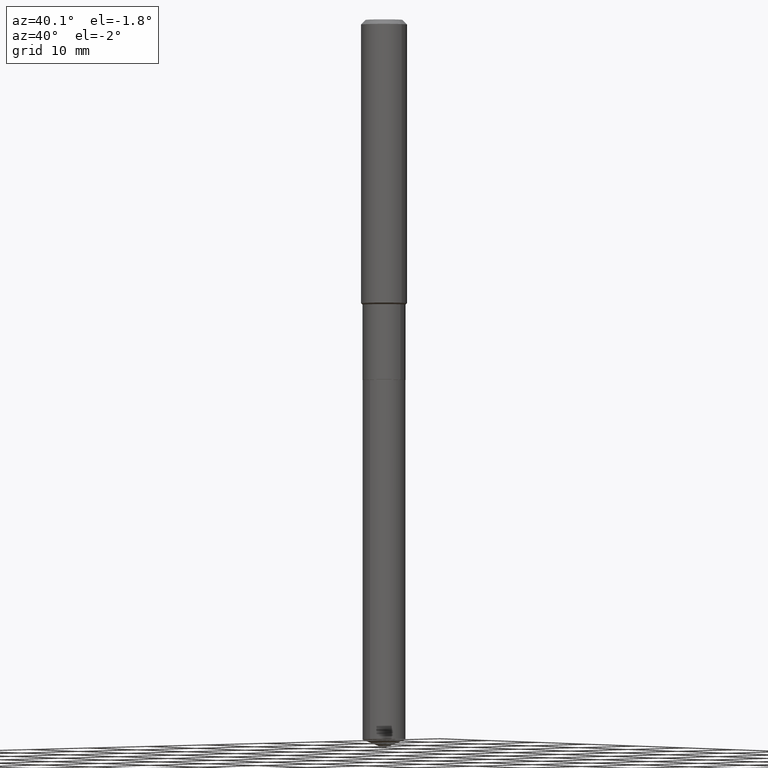
[diagram: clean part render]
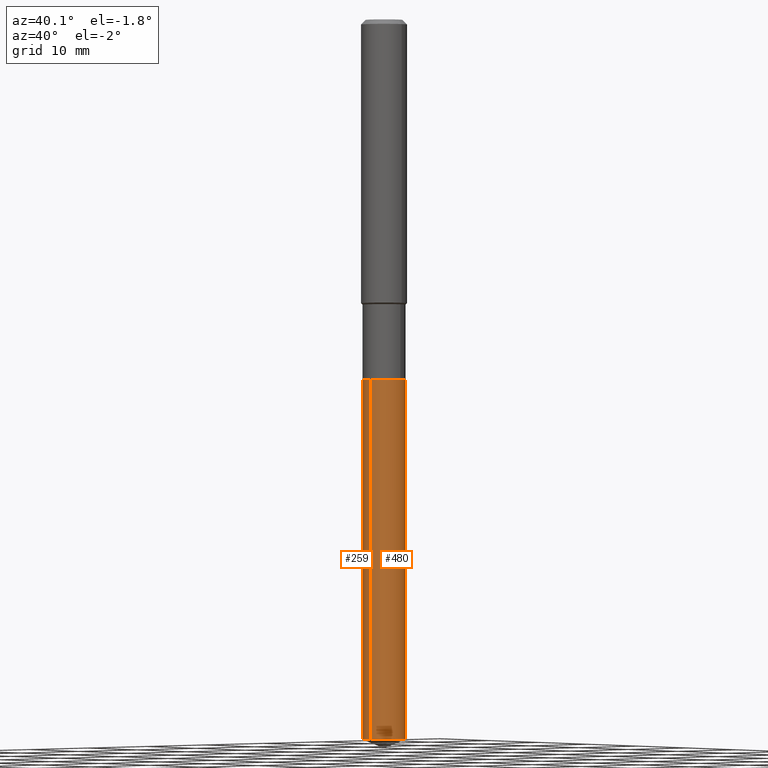
[diagram: same view with one multi-face feature highlighted, each face labeled with its STEP entity id]
A machine part, auxiliary view. The highlighted faces form ONE feature: a constant-radius fillet chain: 2 tangent blend faces with common blend radius 2.8003 mm. The faces share edges in the B-rep.
Their STEP definitions:
[1] entity #480 (Cylinder):
#28 = DIRECTION ( 'NONE',  ( -6.982962677686266711E-15, -1.000000000000000000, 2.477866660919966807E-15 ) ) ;
#31 = VERTEX_POINT ( 'NONE', #120 ) ;
#33 = ORIENTED_EDGE ( 'NONE', *, *, #79, .T. ) ;
#35 = CIRCLE ( 'NONE', #487, 0.1102500000000000008 ) ;
#50 = CARTESIAN_POINT ( 'NONE',  ( 9.040360732535120479E-29, -1.290717722925754200E-14, -3.696771370063453688 ) ) ;
#79 = EDGE_CURVE ( 'NONE', #31, #292, #299, .T. ) ;
#83 = DIRECTION ( 'NONE',  ( -6.982962677686266711E-15, -1.000000000000000000, 2.477866660919966807E-15 ) ) ;
#94 = VECTOR ( 'NONE', #222, 39.37007874015748143 ) ;
#117 = DIRECTION ( 'NONE',  ( -2.445480539169630025E-29, 3.491464536541551464E-15, 1.000000000000000000 ) ) ;
#120 = CARTESIAN_POINT ( 'NONE',  ( 7.833733661756007850E-16, 0.1102499999999870806, -3.696771370063454132 ) ) ;
#139 = ORIENTED_EDGE ( 'NONE', *, *, #395, .T. ) ;
#140 = AXIS2_PLACEMENT_3D ( 'NONE', #467, #325, #28 ) ;
#145 = DIRECTION ( 'NONE',  ( -2.445480539169629745E-29, 3.491464536541551464E-15, 1.000000000000000000 ) ) ;
#158 = CARTESIAN_POINT ( 'NONE',  ( -7.698716352148656203E-16, -0.1102500000000064539, -1.850400000000000045 ) ) ;
#184 = DIRECTION ( 'NONE',  ( -2.445480539169629745E-29, 3.491464536541551464E-15, 1.000000000000000000 ) ) ;
#197 = DIRECTION ( 'NONE',  ( -6.982962677686266711E-15, -1.000000000000000000, 4.955733321839933614E-15 ) ) ;
#214 = ORIENTED_EDGE ( 'NONE', *, *, #393, .F. ) ;
#217 = VERTEX_POINT ( 'NONE', #371 ) ;
#222 = DIRECTION ( 'NONE',  ( -2.445480539169630025E-29, 3.491464536541551464E-15, 1.000000000000000000 ) ) ;
#260 = CARTESIAN_POINT ( 'NONE',  ( -7.698716352148656203E-16, -0.1102500000000064539, -1.850400000000000045 ) ) ;
#274 = CYLINDRICAL_SURFACE ( 'NONE', #140, 0.1102500000000000008 ) ;
#292 = VERTEX_POINT ( 'NONE', #411 ) ;
#299 = LINE ( 'NONE', #462, #351 ) ;
#310 = EDGE_LOOP ( 'NONE', ( #139, #33, #402, #214 ) ) ;
#317 = CIRCLE ( 'NONE', #464, 0.1102500000000000008 ) ;
#325 = DIRECTION ( 'NONE',  ( -2.445480539169629745E-29, 3.491464536541551464E-15, 1.000000000000000000 ) ) ;
#334 = VERTEX_POINT ( 'NONE', #158 ) ;
#351 = VECTOR ( 'NONE', #117, 39.37007874015748143 ) ;
#364 = EDGE_CURVE ( 'NONE', #334, #292, #35, .T. ) ;
#371 = CARTESIAN_POINT ( 'NONE',  ( -7.698716352148202608E-16, -0.1102500000000128932, -3.696771370063453244 ) ) ;
#386 = FACE_OUTER_BOUND ( 'NONE', #310, .T. ) ;
#393 = EDGE_CURVE ( 'NONE', #217, #334, #455, .T. ) ;
#395 = EDGE_CURVE ( 'NONE', #217, #31, #317, .T. ) ;
#402 = ORIENTED_EDGE ( 'NONE', *, *, #364, .F. ) ;
#411 = CARTESIAN_POINT ( 'NONE',  ( 7.833733661756010808E-16, 0.1102499999999935476, -1.850400000000000489 ) ) ;
#426 = CARTESIAN_POINT ( 'NONE',  ( 4.525095478964977394E-29, -6.460637069395357576E-15, -1.850400000000000267 ) ) ;
#455 = LINE ( 'NONE', #260, #94 ) ;
#462 = CARTESIAN_POINT ( 'NONE',  ( 7.833733661755556227E-16, 0.1102499999999935476, -1.850400000000000489 ) ) ;
#464 = AXIS2_PLACEMENT_3D ( 'NONE', #50, #145, #197 ) ;
#467 = CARTESIAN_POINT ( 'NONE',  ( 4.525095478964977394E-29, -6.460637069395357576E-15, -1.850400000000000267 ) ) ;
#480 = ADVANCED_FACE ( 'NONE', ( #386 ), #274, .T. ) ;
#487 = AXIS2_PLACEMENT_3D ( 'NONE', #426, #184, #83 ) ;
[2] entity #259 (Cylinder):
#31 = VERTEX_POINT ( 'NONE', #120 ) ;
#41 = DIRECTION ( 'NONE',  ( -2.445480539169629745E-29, 3.491464536541551464E-15, 1.000000000000000000 ) ) ;
#79 = EDGE_CURVE ( 'NONE', #31, #292, #299, .T. ) ;
#94 = VECTOR ( 'NONE', #222, 39.37007874015748143 ) ;
#102 = CIRCLE ( 'NONE', #210, 0.1102500000000000008 ) ;
#117 = DIRECTION ( 'NONE',  ( -2.445480539169630025E-29, 3.491464536541551464E-15, 1.000000000000000000 ) ) ;
#120 = CARTESIAN_POINT ( 'NONE',  ( 7.833733661756007850E-16, 0.1102499999999870806, -3.696771370063454132 ) ) ;
#137 = EDGE_CURVE ( 'NONE', #31, #217, #102, .T. ) ;
#148 = AXIS2_PLACEMENT_3D ( 'NONE', #329, #243, #295 ) ;
#154 = DIRECTION ( 'NONE',  ( -2.445480539169629745E-29, 3.491464536541551464E-15, 1.000000000000000000 ) ) ;
#158 = CARTESIAN_POINT ( 'NONE',  ( -7.698716352148656203E-16, -0.1102500000000064539, -1.850400000000000045 ) ) ;
#172 = ORIENTED_EDGE ( 'NONE', *, *, #385, .F. ) ;
#210 = AXIS2_PLACEMENT_3D ( 'NONE', #458, #154, #266 ) ;
#217 = VERTEX_POINT ( 'NONE', #371 ) ;
#222 = DIRECTION ( 'NONE',  ( -2.445480539169630025E-29, 3.491464536541551464E-15, 1.000000000000000000 ) ) ;
#243 = DIRECTION ( 'NONE',  ( -2.445480539169629745E-29, 3.491464536541551464E-15, 1.000000000000000000 ) ) ;
#259 = ADVANCED_FACE ( 'NONE', ( #449 ), #405, .T. ) ;
#260 = CARTESIAN_POINT ( 'NONE',  ( -7.698716352148656203E-16, -0.1102500000000064539, -1.850400000000000045 ) ) ;
#266 = DIRECTION ( 'NONE',  ( -6.982962677686266711E-15, -1.000000000000000000, 4.955733321839933614E-15 ) ) ;
#288 = ORIENTED_EDGE ( 'NONE', *, *, #393, .T. ) ;
#292 = VERTEX_POINT ( 'NONE', #411 ) ;
#295 = DIRECTION ( 'NONE',  ( -6.982962677686266711E-15, -1.000000000000000000, 2.477866660919966807E-15 ) ) ;
#299 = LINE ( 'NONE', #462, #351 ) ;
#307 = CIRCLE ( 'NONE', #333, 0.1102500000000000008 ) ;
#315 = ORIENTED_EDGE ( 'NONE', *, *, #137, .T. ) ;
#329 = CARTESIAN_POINT ( 'NONE',  ( 4.525095478964977394E-29, -6.460637069395357576E-15, -1.850400000000000267 ) ) ;
#333 = AXIS2_PLACEMENT_3D ( 'NONE', #459, #41, #388 ) ;
#334 = VERTEX_POINT ( 'NONE', #158 ) ;
#351 = VECTOR ( 'NONE', #117, 39.37007874015748143 ) ;
#371 = CARTESIAN_POINT ( 'NONE',  ( -7.698716352148202608E-16, -0.1102500000000128932, -3.696771370063453244 ) ) ;
#385 = EDGE_CURVE ( 'NONE', #292, #334, #307, .T. ) ;
#388 = DIRECTION ( 'NONE',  ( -6.982962677686266711E-15, -1.000000000000000000, 2.477866660919966807E-15 ) ) ;
#393 = EDGE_CURVE ( 'NONE', #217, #334, #455, .T. ) ;
#396 = EDGE_LOOP ( 'NONE', ( #445, #315, #288, #172 ) ) ;
#405 = CYLINDRICAL_SURFACE ( 'NONE', #148, 0.1102500000000000008 ) ;
#411 = CARTESIAN_POINT ( 'NONE',  ( 7.833733661756010808E-16, 0.1102499999999935476, -1.850400000000000489 ) ) ;
#445 = ORIENTED_EDGE ( 'NONE', *, *, #79, .F. ) ;
#449 = FACE_OUTER_BOUND ( 'NONE', #396, .T. ) ;
#455 = LINE ( 'NONE', #260, #94 ) ;
#458 = CARTESIAN_POINT ( 'NONE',  ( 9.040360732535120479E-29, -1.290717722925754200E-14, -3.696771370063453688 ) ) ;
#459 = CARTESIAN_POINT ( 'NONE',  ( 4.525095478964977394E-29, -6.460637069395357576E-15, -1.850400000000000267 ) ) ;
#462 = CARTESIAN_POINT ( 'NONE',  ( 7.833733661755556227E-16, 0.1102499999999935476, -1.850400000000000489 ) ) ;